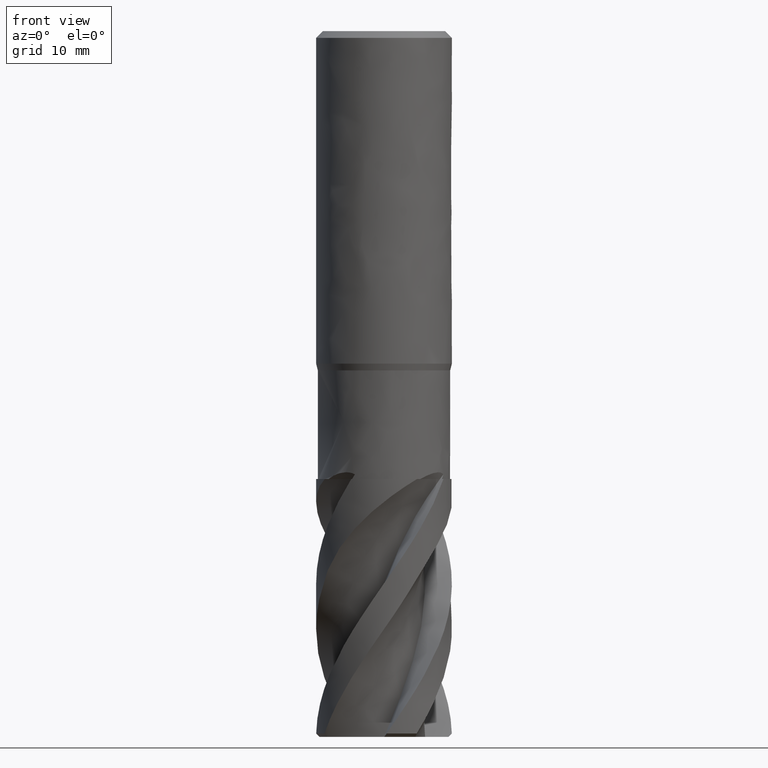
[diagram: clean part render]
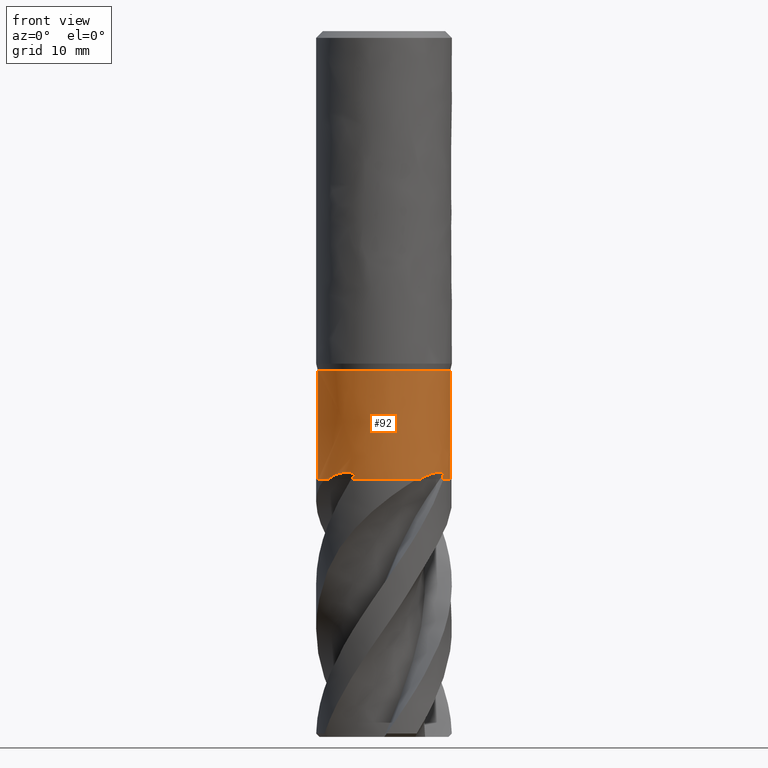
[diagram: same view with one face highlighted and labeled with its STEP entity id]
A machine part, front view. The second image highlights one B-rep face of the part: STEP entity #92.
In plain terms, the highlighted face is a freeform B-spline surface patch.
Its self-contained STEP definition (entity closure, byte-faithful):
#92 = ADVANCED_FACE('', (#93), #480, .T.);
#93 = FACE_OUTER_BOUND('', #94, .T.);
#94 = EDGE_LOOP('', (#95, #106, #115, #154, #163, #187, #196, #205, #244, #253, #277, #286, #295, #303, #310, #311, #320, #359, #368, #392, #401, #410, #449, #458));
#95 = ORIENTED_EDGE('', *, *, #96, .T.);
#96 = EDGE_CURVE('', #97, #99, #101, .T.);
#97 = VERTEX_POINT('', #98);
#98 = CARTESIAN_POINT('', (8.756850959223, -4.28719736867283, -65.3017050528582));
#99 = VERTEX_POINT('', #100);
#100 = CARTESIAN_POINT('', (8.53912736939505, -4.70593282668254, -66.));
#101 = B_SPLINE_CURVE_WITH_KNOTS('', 3, (#102, #103, #104, #105), .UNSPECIFIED., .F., .U., (4, 4), (0., 0.842827846339895), .UNSPECIFIED.);
#102 = CARTESIAN_POINT('', (8.756850959223, -4.28719736867283, -65.3017050528582));
#103 = CARTESIAN_POINT('', (8.68766062384898, -4.4285226687666, -65.5344465623021));
#104 = CARTESIAN_POINT('', (8.61505624183441, -4.56815646296184, -65.7672313743135));
#105 = CARTESIAN_POINT('', (8.53912736939505, -4.70593282668254, -66.));
#106 = ORIENTED_EDGE('', *, *, #107, .F.);
#107 = EDGE_CURVE('', #108, #99, #110, .T.);
#108 = VERTEX_POINT('', #109);
#109 = CARTESIAN_POINT('', (8.1661115730471, 5.32701809425746, -66.));
#110 = CIRCLE('', #111, 9.75);
#111 = AXIS2_PLACEMENT_3D('', #112, #113, #114);
#112 = CARTESIAN_POINT('', (2.47460364139206E-31, 4.04133443718627E-15, -66.));
#113 = DIRECTION('', (3.74939945665464E-33, 6.12323399573677E-17, -1.));
#114 = DIRECTION('', (-1., 6.12323399573677E-17, 0.));
#115 = ORIENTED_EDGE('', *, *, #116, .F.);
#116 = EDGE_CURVE('', #117, #108, #119, .T.);
#117 = VERTEX_POINT('', #118);
#118 = CARTESIAN_POINT('', (5.58780571917136, 7.98992661072653, -65.));
#119 = B_SPLINE_CURVE_WITH_KNOTS('', 3, (#120, #121, #122, #123, #124, #125, #126, #127, #128, #129, #130, #131, #132, #133, #134, #135, #136, #137, #138, #139, #140, #141, #142, #143, #144, #145, #146, #147, #148, #149, #150, #151, #152, #153), .UNSPECIFIED., .F., .U., (4, 3, 3, 3, 3, 3, 3, 3, 3, 3, 3, 4), (0., 0.295894813502349, 0.591605543678742, 0.887162923900365, 1.18259319370768, 1.47791821211226, 1.92055886264638, 2.36295472450022, 2.80516423822669, 3.2472305907231, 3.68918603656522, 3.88868995742141), .UNSPECIFIED.);
#120 = CARTESIAN_POINT('', (5.58780571917134, 7.98992661072655, -65.));
#121 = CARTESIAN_POINT('', (5.66863191934593, 7.9334002963311, -65.0003074940693));
#122 = CARTESIAN_POINT('', (5.74862943971346, 7.87562392953427, -65.0036174697221));
#123 = CARTESIAN_POINT('', (5.82756014106156, 7.81677956720737, -65.0095738791638));
#124 = CARTESIAN_POINT('', (5.90644173770974, 7.75797181338268, -65.015526582979));
#125 = CARTESIAN_POINT('', (5.98433476937979, 7.69804091377668, -65.0241277170154));
#126 = CARTESIAN_POINT('', (6.06106803810297, 7.63714306776403, -65.0350616414919));
#127 = CARTESIAN_POINT('', (6.13776151441389, 7.57627680221491, -65.0459898958434));
#128 = CARTESIAN_POINT('', (6.21335866759627, 7.51439585419938, -65.0592571987668));
#129 = CARTESIAN_POINT('', (6.28773667915756, 7.45163522011001, -65.0745879697391));
#130 = CARTESIAN_POINT('', (6.36208270295439, 7.38890157749754, -65.0899121474041));
#131 = CARTESIAN_POINT('', (6.43526151595352, 7.32524655654435, -65.1073084830774));
#132 = CARTESIAN_POINT('', (6.50718503328852, 7.26078803867399, -65.1265381143545));
#133 = CARTESIAN_POINT('', (6.57908292680679, 7.19635248510389, -65.1457608947911));
#134 = CARTESIAN_POINT('', (6.64976850337021, 7.13107665059492, -65.1668269728719));
#135 = CARTESIAN_POINT('', (6.71917861277031, 7.06506466847218, -65.1895297892887));
#136 = CARTESIAN_POINT('', (6.82321225050437, 6.96612423034842, -65.2235573480847));
#137 = CARTESIAN_POINT('', (6.92447318831579, 6.86544041781197, -65.2612889157965));
#138 = CARTESIAN_POINT('', (7.02282102425289, 6.76331907138142, -65.3021425154375));
#139 = CARTESIAN_POINT('', (7.12111447197025, 6.66125419999353, -65.3429735222624));
#140 = CARTESIAN_POINT('', (7.21659205619334, 6.5576570843931, -65.3869628833413));
#141 = CARTESIAN_POINT('', (7.30917031177156, 6.45279236869724, -65.4336390973057));
#142 = CARTESIAN_POINT('', (7.40170957108862, 6.34797182462476, -65.4802956500893));
#143 = CARTESIAN_POINT('', (7.4914267434313, 6.24180089685767, -65.5296751384779));
#144 = CARTESIAN_POINT('', (7.57827442019825, 6.13451357584029, -65.5813917381471));
#145 = CARTESIAN_POINT('', (7.66509398083507, 6.02726098809836, -65.6330915950467));
#146 = CARTESIAN_POINT('', (7.74910653942127, 5.91881841652804, -65.6871636722768));
#147 = CARTESIAN_POINT('', (7.83028813586472, 5.80939650130169, -65.7432887269051));
#148 = CARTESIAN_POINT('', (7.91144936527684, 5.70000203810477, -65.7993997007467));
#149 = CARTESIAN_POINT('', (7.98983094659575, 5.5895618859281, -65.8575975187286));
#150 = CARTESIAN_POINT('', (8.06542463959146, 5.4782684657727, -65.9176150439413));
#151 = CARTESIAN_POINT('', (8.09954852761349, 5.42802929823809, -65.9447076654095));
#152 = CARTESIAN_POINT('', (8.13311083595195, 5.3776069408398, -65.9721765606192));
#153 = CARTESIAN_POINT('', (8.1661115730471, 5.32701809425746, -66.));
#154 = ORIENTED_EDGE('', *, *, #155, .F.);
#155 = EDGE_CURVE('', #156, #117, #158, .T.);
#156 = VERTEX_POINT('', #157);
#157 = CARTESIAN_POINT('', (5.56306218584653, 8.00717422792863, -65.));
#158 = CIRCLE('', #159, 9.75);
#159 = AXIS2_PLACEMENT_3D('', #160, #161, #162);
#160 = CARTESIAN_POINT('', (2.43710964682552E-31, 3.9801020972289E-15, -65.));
#161 = DIRECTION('', (3.74939945665464E-33, 6.12323399573677E-17, -1.));
#162 = DIRECTION('', (-1., 6.12323399573677E-17, 0.));
#163 = ORIENTED_EDGE('', *, *, #164, .T.);
#164 = EDGE_CURVE('', #156, #165, #167, .T.);
#165 = VERTEX_POINT('', #166);
#166 = CARTESIAN_POINT('', (4.28719736867284, 8.756850959223, -65.3017050528582));
#167 = B_SPLINE_CURVE_WITH_KNOTS('', 3, (#168, #169, #170, #171, #172, #173, #174, #175, #176, #177, #178, #179, #180, #181, #182, #183, #184, #185, #186), .UNSPECIFIED., .F., .U., (4, 3, 3, 3, 3, 3, 4), (0., 0.295524196597729, 0.59090678252932, 0.88613401001352, 1.18119798637732, 1.47610099687891, 1.52332294986061), .UNSPECIFIED.);
#168 = CARTESIAN_POINT('', (5.56306218584757, 8.00717422792791, -65.));
#169 = CARTESIAN_POINT('', (5.48216296760915, 8.0633797467584, -65.0003084094346));
#170 = CARTESIAN_POINT('', (5.40035956915525, 8.11839113094171, -65.0036513465866));
#171 = CARTESIAN_POINT('', (5.31798982481093, 8.17199389520131, -65.0104194966552));
#172 = CARTESIAN_POINT('', (5.23565955078579, 8.22557097383774, -65.01718440353));
#173 = CARTESIAN_POINT('', (5.15264217490624, 8.27781832090463, -65.0273834288578));
#174 = CARTESIAN_POINT('', (5.0693954629468, 8.32848903704955, -65.0414192692173));
#175 = CARTESIAN_POINT('', (4.9861925351525, 8.37913310259228, -65.0554477273326));
#176 = CARTESIAN_POINT('', (4.9026108430375, 8.42829173732703, -65.0733380014459));
#177 = CARTESIAN_POINT('', (4.8192544647937, 8.47568796048829, -65.0954662287012));
#178 = CARTESIAN_POINT('', (4.73594417993449, 8.52305797506913, -65.1175822197615));
#179 = CARTESIAN_POINT('', (4.65267781824047, 8.56876905662357, -65.1439854493659));
#180 = CARTESIAN_POINT('', (4.57021933683169, 8.61252548404066, -65.1749630672334));
#181 = CARTESIAN_POINT('', (4.48780583888961, 8.65625804107155, -65.2059237859218));
#182 = CARTESIAN_POINT('', (4.40598738644574, 8.6981496225031, -65.2415415084255));
#183 = CARTESIAN_POINT('', (4.32567050542153, 8.73791020087334, -65.281931882519));
#184 = CARTESIAN_POINT('', (4.31280959914285, 8.74427694551637, -65.2883994745016));
#185 = CARTESIAN_POINT('', (4.29998389968607, 8.75059090268331, -65.2949905602877));
#186 = CARTESIAN_POINT('', (4.28719736867284, 8.756850959223, -65.3017050528582));
#187 = ORIENTED_EDGE('', *, *, #188, .T.);
#188 = EDGE_CURVE('', #165, #189, #191, .T.);
#189 = VERTEX_POINT('', #190);
#190 = CARTESIAN_POINT('', (4.70593282668255, 8.53912736939505, -66.));
#191 = B_SPLINE_CURVE_WITH_KNOTS('', 3, (#192, #193, #194, #195), .UNSPECIFIED., .F., .U., (4, 4), (0., 0.842827846339896), .UNSPECIFIED.);
#192 = CARTESIAN_POINT('', (4.28719736867284, 8.756850959223, -65.3017050528582));
#193 = CARTESIAN_POINT('', (4.42852266876661, 8.68766062384899, -65.5344465623021));
#194 = CARTESIAN_POINT('', (4.56815646296185, 8.61505624183441, -65.7672313743135));
#195 = CARTESIAN_POINT('', (4.70593282668255, 8.53912736939505, -66.));
#196 = ORIENTED_EDGE('', *, *, #197, .F.);
#197 = EDGE_CURVE('', #198, #189, #200, .T.);
#198 = VERTEX_POINT('', #199);
#199 = CARTESIAN_POINT('', (-5.32701809425744, 8.16611157304711, -66.));
#200 = CIRCLE('', #201, 9.75);
#201 = AXIS2_PLACEMENT_3D('', #202, #203, #204);
#202 = CARTESIAN_POINT('', (2.47460364139206E-31, 4.04133443718627E-15, -66.));
#203 = DIRECTION('', (3.74939945665464E-33, 6.12323399573677E-17, -1.));
#204 = DIRECTION('', (-1., 6.12323399573677E-17, 0.));
#205 = ORIENTED_EDGE('', *, *, #206, .F.);
#206 = EDGE_CURVE('', #207, #198, #209, .T.);
#207 = VERTEX_POINT('', #208);
#208 = CARTESIAN_POINT('', (-7.98992661072652, 5.58780571917137, -65.));
#209 = B_SPLINE_CURVE_WITH_KNOTS('', 3, (#210, #211, #212, #213, #214, #215, #216, #217, #218, #219, #220, #221, #222, #223, #224, #225, #226, #227, #228, #229, #230, #231, #232, #233, #234, #235, #236, #237, #238, #239, #240, #241, #242, #243), .UNSPECIFIED., .F., .U., (4, 3, 3, 3, 3, 3, 3, 3, 3, 3, 3, 4), (0., 0.295894813502346, 0.591605543678742, 0.887162923900364, 1.18259319370768, 1.47791821211226, 1.92055886264638, 2.36295472450022, 2.80516423822669, 3.2472305907231, 3.68918603656523, 3.88868995742159), .UNSPECIFIED.);
#210 = CARTESIAN_POINT('', (-7.98992661072664, 5.5878057191712, -65.));
#211 = CARTESIAN_POINT('', (-7.93340029633119, 5.6686319193458, -65.0003074940693));
#212 = CARTESIAN_POINT('', (-7.87562392953436, 5.74862943971333, -65.0036174697221));
#213 = CARTESIAN_POINT('', (-7.81677956720747, 5.82756014106143, -65.0095738791638));
#214 = CARTESIAN_POINT('', (-7.75797181338277, 5.90644173770961, -65.015526582979));
#215 = CARTESIAN_POINT('', (-7.69804091377678, 5.98433476937966, -65.0241277170154));
#216 = CARTESIAN_POINT('', (-7.63714306776413, 6.06106803810285, -65.0350616414919));
#217 = CARTESIAN_POINT('', (-7.57627680221501, 6.13776151441377, -65.0459898958433));
#218 = CARTESIAN_POINT('', (-7.51439585419948, 6.21335866759615, -65.0592571987667));
#219 = CARTESIAN_POINT('', (-7.45163522011011, 6.28773667915744, -65.0745879697391));
#220 = CARTESIAN_POINT('', (-7.38890157749765, 6.36208270295427, -65.0899121474041));
#221 = CARTESIAN_POINT('', (-7.32524655654445, 6.43526151595341, -65.1073084830774));
#222 = CARTESIAN_POINT('', (-7.26078803867409, 6.50718503328841, -65.1265381143545));
#223 = CARTESIAN_POINT('', (-7.196352485104, 6.57908292680668, -65.1457608947911));
#224 = CARTESIAN_POINT('', (-7.13107665059503, 6.6497685033701, -65.1668269728718));
#225 = CARTESIAN_POINT('', (-7.06506466847229, 6.7191786127702, -65.1895297892887));
#226 = CARTESIAN_POINT('', (-6.96612423034853, 6.82321225050426, -65.2235573480847));
#227 = CARTESIAN_POINT('', (-6.86544041781207, 6.92447318831568, -65.2612889157965));
#228 = CARTESIAN_POINT('', (-6.76331907138153, 7.02282102425278, -65.3021425154374));
#229 = CARTESIAN_POINT('', (-6.66125419999365, 7.12111447197015, -65.3429735222624));
#230 = CARTESIAN_POINT('', (-6.55765708439321, 7.21659205619325, -65.3869628833412));
#231 = CARTESIAN_POINT('', (-6.45279236869735, 7.30917031177146, -65.4336390973057));
#232 = CARTESIAN_POINT('', (-6.34797182462487, 7.40170957108852, -65.4802956500892));
#233 = CARTESIAN_POINT('', (-6.24180089685779, 7.49142674343121, -65.5296751384779));
#234 = CARTESIAN_POINT('', (-6.13451357584041, 7.57827442019816, -65.581391738147));
#235 = CARTESIAN_POINT('', (-6.02726098809848, 7.66509398083498, -65.6330915950466));
#236 = CARTESIAN_POINT('', (-5.91881841652816, 7.74910653942118, -65.6871636722768));
#237 = CARTESIAN_POINT('', (-5.80939650130181, 7.83028813586463, -65.7432887269051));
#238 = CARTESIAN_POINT('', (-5.70000203810489, 7.91144936527676, -65.7993997007467));
#239 = CARTESIAN_POINT('', (-5.58956188592822, 7.98983094659567, -65.8575975187285));
#240 = CARTESIAN_POINT('', (-5.47826846577282, 8.06542463959139, -65.9176150439412));
#241 = CARTESIAN_POINT('', (-5.42802929823816, 8.09954852761345, -65.9447076654095));
#242 = CARTESIAN_POINT('', (-5.37760694083982, 8.13311083595193, -65.9721765606192));
#243 = CARTESIAN_POINT('', (-5.32701809425744, 8.16611157304711, -66.));
#244 = ORIENTED_EDGE('', *, *, #245, .F.);
#245 = EDGE_CURVE('', #246, #207, #248, .T.);
#246 = VERTEX_POINT('', #247);
#247 = CARTESIAN_POINT('', (-8.00717422792863, 5.56306218584654, -65.));
#248 = CIRCLE('', #249, 9.75);
#249 = AXIS2_PLACEMENT_3D('', #250, #251, #252);
#250 = CARTESIAN_POINT('', (2.43710964682552E-31, 3.9801020972289E-15, -65.));
#251 = DIRECTION('', (3.74939945665464E-33, 6.12323399573677E-17, -1.));
#252 = DIRECTION('', (-1., 6.12323399573677E-17, 0.));
#253 = ORIENTED_EDGE('', *, *, #254, .T.);
#254 = EDGE_CURVE('', #246, #255, #257, .T.);
#255 = VERTEX_POINT('', #256);
#256 = CARTESIAN_POINT('', (-8.756850959223, 4.28719736867284, -65.3017050528582));
#257 = B_SPLINE_CURVE_WITH_KNOTS('', 3, (#258, #259, #260, #261, #262, #263, #264, #265, #266, #267, #268, #269, #270, #271, #272, #273, #274, #275, #276), .UNSPECIFIED., .F., .U., (4, 3, 3, 3, 3, 3, 4), (0., 0.295524196597728, 0.590906782529322, 0.886134010013519, 1.18119798637732, 1.47610099687891, 1.52332294986075), .UNSPECIFIED.);
#258 = CARTESIAN_POINT('', (-8.00717422792782, 5.56306218584769, -65.));
#259 = CARTESIAN_POINT('', (-8.06337974675831, 5.48216296760927, -65.0003084094346));
#260 = CARTESIAN_POINT('', (-8.11839113094162, 5.40035956915538, -65.0036513465866));
#261 = CARTESIAN_POINT('', (-8.17199389520123, 5.31798982481106, -65.0104194966552));
#262 = CARTESIAN_POINT('', (-8.22557097383765, 5.23565955078592, -65.01718440353));
#263 = CARTESIAN_POINT('', (-8.27781832090455, 5.15264217490636, -65.0273834288578));
#264 = CARTESIAN_POINT('', (-8.32848903704947, 5.06939546294693, -65.0414192692173));
#265 = CARTESIAN_POINT('', (-8.3791331025922, 4.98619253515263, -65.0554477273326));
#266 = CARTESIAN_POINT('', (-8.42829173732695, 4.90261084303763, -65.0733380014459));
#267 = CARTESIAN_POINT('', (-8.47568796048821, 4.81925446479382, -65.0954662287011));
#268 = CARTESIAN_POINT('', (-8.52305797506905, 4.73594417993462, -65.1175822197614));
#269 = CARTESIAN_POINT('', (-8.56876905662351, 4.6526778182406, -65.1439854493659));
#270 = CARTESIAN_POINT('', (-8.61252548404059, 4.57021933683181, -65.1749630672333));
#271 = CARTESIAN_POINT('', (-8.65625804107149, 4.48780583888973, -65.2059237859217));
#272 = CARTESIAN_POINT('', (-8.69814962250304, 4.40598738644587, -65.2415415084254));
#273 = CARTESIAN_POINT('', (-8.73791020087327, 4.32567050542165, -65.281931882519));
#274 = CARTESIAN_POINT('', (-8.74427694551632, 4.31280959914293, -65.2883994745016));
#275 = CARTESIAN_POINT('', (-8.75059090268329, 4.29998389968612, -65.2949905602877));
#276 = CARTESIAN_POINT('', (-8.756850959223, 4.28719736867284, -65.3017050528582));
#277 = ORIENTED_EDGE('', *, *, #278, .T.);
#278 = EDGE_CURVE('', #255, #279, #281, .T.);
#279 = VERTEX_POINT('', #280);
#280 = CARTESIAN_POINT('', (-8.53912736939505, 4.70593282668256, -66.));
#281 = B_SPLINE_CURVE_WITH_KNOTS('', 3, (#282, #283, #284, #285), .UNSPECIFIED., .F., .U., (4, 4), (0., 0.842827846339895), .UNSPECIFIED.);
#282 = CARTESIAN_POINT('', (-8.756850959223, 4.28719736867284, -65.3017050528582));
#283 = CARTESIAN_POINT('', (-8.68766062384898, 4.42852266876661, -65.5344465623021));
#284 = CARTESIAN_POINT('', (-8.6150562418344, 4.56815646296185, -65.7672313743135));
#285 = CARTESIAN_POINT('', (-8.53912736939505, 4.70593282668255, -66.));
#286 = ORIENTED_EDGE('', *, *, #287, .F.);
#287 = EDGE_CURVE('', #288, #279, #290, .T.);
#288 = VERTEX_POINT('', #289);
#289 = CARTESIAN_POINT('', (-9.75, 4.6383497517706E-15, -66.));
#290 = CIRCLE('', #291, 9.75);
#291 = AXIS2_PLACEMENT_3D('', #292, #293, #294);
#292 = CARTESIAN_POINT('', (2.47460364139206E-31, 4.04133443718627E-15, -66.));
#293 = DIRECTION('', (3.74939945665464E-33, 6.12323399573677E-17, -1.));
#294 = DIRECTION('', (-1., 6.12323399573677E-17, 0.));
#295 = ORIENTED_EDGE('', *, *, #296, .F.);
#296 = EDGE_CURVE('', #297, #288, #299, .T.);
#297 = VERTEX_POINT('', #298);
#298 = CARTESIAN_POINT('', (-9.75, 3.65863231245272E-15, -50.));
#299 = LINE('', #300, #301);
#300 = CARTESIAN_POINT('', (-9.75, 3.65863231245272E-15, -50.));
#301 = VECTOR('', #302, 16.);
#302 = DIRECTION('', (0., 9.79717439317882E-16, -16.));
#303 = ORIENTED_EDGE('', *, *, #304, .T.);
#304 = EDGE_CURVE('', #297, #297, #305, .T.);
#305 = CIRCLE('', #306, 9.75);
#306 = AXIS2_PLACEMENT_3D('', #307, #308, #309);
#307 = CARTESIAN_POINT('', (1.87469972832732E-31, 3.06161699786838E-15, -50.));
#308 = DIRECTION('', (3.74939945665464E-33, 6.12323399573677E-17, -1.));
#309 = DIRECTION('', (-1., 6.12323399573677E-17, 0.));
#310 = ORIENTED_EDGE('', *, *, #296, .T.);
#311 = ORIENTED_EDGE('', *, *, #312, .F.);
#312 = EDGE_CURVE('', #313, #288, #315, .T.);
#313 = VERTEX_POINT('', #314);
#314 = CARTESIAN_POINT('', (-8.16611157304709, -5.32701809425746, -66.));
#315 = CIRCLE('', #316, 9.75);
#316 = AXIS2_PLACEMENT_3D('', #317, #318, #319);
#317 = CARTESIAN_POINT('', (2.47460364139206E-31, 4.04133443718627E-15, -66.));
#318 = DIRECTION('', (3.74939945665464E-33, 6.12323399573677E-17, -1.));
#319 = DIRECTION('', (-1., 6.12323399573677E-17, 0.));
#320 = ORIENTED_EDGE('', *, *, #321, .F.);
#321 = EDGE_CURVE('', #322, #313, #324, .T.);
#322 = VERTEX_POINT('', #323);
#323 = CARTESIAN_POINT('', (-5.58780571917135, -7.98992661072652, -65.));
#324 = B_SPLINE_CURVE_WITH_KNOTS('', 3, (#325, #326, #327, #328, #329, #330, #331, #332, #333, #334, #335, #336, #337, #338, #339, #340, #341, #342, #343, #344, #345, #346, #347, #348, #349, #350, #351, #352, #353, #354, #355, #356, #357, #358), .UNSPECIFIED., .F., .U., (4, 3, 3, 3, 3, 3, 3, 3, 3, 3, 3, 4), (0., 0.295894813502348, 0.591605543678741, 0.887162923900365, 1.18259319370768, 1.47791821211226, 1.92055886264638, 2.36295472450021, 2.80516423822669, 3.2472305907231, 3.68918603656522, 3.88868995742194), .UNSPECIFIED.);
#325 = CARTESIAN_POINT('', (-5.5878057191709, -7.98992661072684, -65.));
#326 = CARTESIAN_POINT('', (-5.6686319193455, -7.9334002963314, -65.0003074940693));
#327 = CARTESIAN_POINT('', (-5.74862943971303, -7.87562392953457, -65.0036174697221));
#328 = CARTESIAN_POINT('', (-5.82756014106114, -7.81677956720768, -65.0095738791638));
#329 = CARTESIAN_POINT('', (-5.90644173770932, -7.75797181338299, -65.015526582979));
#330 = CARTESIAN_POINT('', (-5.98433476937937, -7.69804091377699, -65.0241277170153));
#331 = CARTESIAN_POINT('', (-6.06106803810256, -7.63714306776435, -65.0350616414919));
#332 = CARTESIAN_POINT('', (-6.13776151441348, -7.57627680221523, -65.0459898958433));
#333 = CARTESIAN_POINT('', (-6.21335866759587, -7.5143958541997, -65.0592571987667));
#334 = CARTESIAN_POINT('', (-6.28773667915717, -7.45163522011034, -65.074587969739));
#335 = CARTESIAN_POINT('', (-6.362082702954, -7.38890157749787, -65.089912147404));
#336 = CARTESIAN_POINT('', (-6.43526151595314, -7.32524655654468, -65.1073084830773));
#337 = CARTESIAN_POINT('', (-6.50718503328814, -7.26078803867432, -65.1265381143544));
#338 = CARTESIAN_POINT('', (-6.57908292680642, -7.19635248510423, -65.145760894791));
#339 = CARTESIAN_POINT('', (-6.64976850336984, -7.13107665059527, -65.1668269728717));
#340 = CARTESIAN_POINT('', (-6.71917861276994, -7.06506466847253, -65.1895297892886));
#341 = CARTESIAN_POINT('', (-6.823212250504, -6.96612423034877, -65.2235573480846));
#342 = CARTESIAN_POINT('', (-6.92447318831543, -6.86544041781232, -65.2612889157964));
#343 = CARTESIAN_POINT('', (-7.02282102425253, -6.76331907138178, -65.3021425154373));
#344 = CARTESIAN_POINT('', (-7.1211144719699, -6.6612541999939, -65.3429735222623));
#345 = CARTESIAN_POINT('', (-7.21659205619301, -6.55765708439347, -65.3869628833411));
#346 = CARTESIAN_POINT('', (-7.30917031177123, -6.45279236869761, -65.4336390973056));
#347 = CARTESIAN_POINT('', (-7.40170957108829, -6.34797182462513, -65.4802956500891));
#348 = CARTESIAN_POINT('', (-7.49142674343098, -6.24180089685805, -65.5296751384778));
#349 = CARTESIAN_POINT('', (-7.57827442019794, -6.13451357584067, -65.5813917381469));
#350 = CARTESIAN_POINT('', (-7.66509398083477, -6.02726098809875, -65.6330915950465));
#351 = CARTESIAN_POINT('', (-7.74910653942097, -5.91881841652843, -65.6871636722766));
#352 = CARTESIAN_POINT('', (-7.83028813586442, -5.80939650130207, -65.743288726905));
#353 = CARTESIAN_POINT('', (-7.91144936527655, -5.70000203810516, -65.7993997007465));
#354 = CARTESIAN_POINT('', (-7.98983094659547, -5.58956188592849, -65.8575975187283));
#355 = CARTESIAN_POINT('', (-8.06542463959119, -5.47826846577309, -65.9176150439411));
#356 = CARTESIAN_POINT('', (-8.09954852761332, -5.42802929823834, -65.9447076654094));
#357 = CARTESIAN_POINT('', (-8.13311083595187, -5.37760694083992, -65.9721765606191));
#358 = CARTESIAN_POINT('', (-8.1661115730471, -5.32701809425745, -66.));
#359 = ORIENTED_EDGE('', *, *, #360, .F.);
#360 = EDGE_CURVE('', #361, #322, #363, .T.);
#361 = VERTEX_POINT('', #362);
#362 = CARTESIAN_POINT('', (-5.56306218584653, -8.00717422792862, -65.));
#363 = CIRCLE('', #364, 9.75);
#364 = AXIS2_PLACEMENT_3D('', #365, #366, #367);
#365 = CARTESIAN_POINT('', (2.43710964682552E-31, 3.9801020972289E-15, -65.));
#366 = DIRECTION('', (3.74939945665464E-33, 6.12323399573677E-17, -1.));
#367 = DIRECTION('', (-1., 6.12323399573677E-17, 0.));
#368 = ORIENTED_EDGE('', *, *, #369, .T.);
#369 = EDGE_CURVE('', #361, #370, #372, .T.);
#370 = VERTEX_POINT('', #371);
#371 = CARTESIAN_POINT('', (-4.28719736867284, -8.75685095922299, -65.3017050528582));
#372 = B_SPLINE_CURVE_WITH_KNOTS('', 3, (#373, #374, #375, #376, #377, #378, #379, #380, #381, #382, #383, #384, #385, #386, #387, #388, #389, #390, #391), .UNSPECIFIED., .F., .U., (4, 3, 3, 3, 3, 3, 4), (0., 0.295524196597729, 0.590906782529322, 0.886134010013515, 1.18119798637732, 1.47610099687891, 1.52332294986015), .UNSPECIFIED.);
#373 = CARTESIAN_POINT('', (-5.56306218584719, -8.00717422792816, -65.));
#374 = CARTESIAN_POINT('', (-5.48216296760877, -8.06337974675865, -65.0003084094346));
#375 = CARTESIAN_POINT('', (-5.40035956915487, -8.11839113094195, -65.0036513465866));
#376 = CARTESIAN_POINT('', (-5.31798982481055, -8.17199389520155, -65.0104194966552));
#377 = CARTESIAN_POINT('', (-5.2356595507854, -8.22557097383797, -65.01718440353));
#378 = CARTESIAN_POINT('', (-5.15264217490585, -8.27781832090486, -65.0273834288579));
#379 = CARTESIAN_POINT('', (-5.06939546294641, -8.32848903704977, -65.0414192692174));
#380 = CARTESIAN_POINT('', (-4.98619253515211, -8.3791331025925, -65.0554477273327));
#381 = CARTESIAN_POINT('', (-4.90261084303711, -8.42829173732724, -65.073338001446));
#382 = CARTESIAN_POINT('', (-4.81925446479331, -8.47568796048849, -65.0954662287013));
#383 = CARTESIAN_POINT('', (-4.7359441799341, -8.52305797506933, -65.1175822197616));
#384 = CARTESIAN_POINT('', (-4.65267781824009, -8.56876905662378, -65.1439854493661));
#385 = CARTESIAN_POINT('', (-4.5702193368313, -8.61252548404085, -65.1749630672335));
#386 = CARTESIAN_POINT('', (-4.48780583888923, -8.65625804107174, -65.2059237859219));
#387 = CARTESIAN_POINT('', (-4.40598738644537, -8.69814962250328, -65.2415415084256));
#388 = CARTESIAN_POINT('', (-4.32567050542116, -8.73791020087351, -65.2819318825192));
#389 = CARTESIAN_POINT('', (-4.3128095991426, -8.74427694551648, -65.2883994745017));
#390 = CARTESIAN_POINT('', (-4.29998389968595, -8.75059090268336, -65.2949905602878));
#391 = CARTESIAN_POINT('', (-4.28719736867284, -8.75685095922299, -65.3017050528582));
#392 = ORIENTED_EDGE('', *, *, #393, .T.);
#393 = EDGE_CURVE('', #370, #394, #396, .T.);
#394 = VERTEX_POINT('', #395);
#395 = CARTESIAN_POINT('', (-4.70593282668255, -8.53912736939504, -66.));
#396 = B_SPLINE_CURVE_WITH_KNOTS('', 3, (#397, #398, #399, #400), .UNSPECIFIED., .F., .U., (4, 4), (0., 0.8428278463399), .UNSPECIFIED.);
#397 = CARTESIAN_POINT('', (-4.28719736867284, -8.75685095922299, -65.3017050528582));
#398 = CARTESIAN_POINT('', (-4.42852266876661, -8.68766062384898, -65.5344465623021));
#399 = CARTESIAN_POINT('', (-4.56815646296185, -8.6150562418344, -65.7672313743135));
#400 = CARTESIAN_POINT('', (-4.70593282668255, -8.53912736939504, -66.));
#401 = ORIENTED_EDGE('', *, *, #402, .F.);
#402 = EDGE_CURVE('', #403, #394, #405, .T.);
#403 = VERTEX_POINT('', #404);
#404 = CARTESIAN_POINT('', (5.32701809425746, -8.16611157304709, -66.));
#405 = CIRCLE('', #406, 9.75);
#406 = AXIS2_PLACEMENT_3D('', #407, #408, #409);
#407 = CARTESIAN_POINT('', (2.47460364139206E-31, 4.04133443718627E-15, -66.));
#408 = DIRECTION('', (3.74939945665464E-33, 6.12323399573677E-17, -1.));
#409 = DIRECTION('', (-1., 6.12323399573677E-17, 0.));
#410 = ORIENTED_EDGE('', *, *, #411, .F.);
#411 = EDGE_CURVE('', #412, #403, #414, .T.);
#412 = VERTEX_POINT('', #413);
#413 = CARTESIAN_POINT('', (7.98992661072652, -5.58780571917135, -65.));
#414 = B_SPLINE_CURVE_WITH_KNOTS('', 3, (#415, #416, #417, #418, #419, #420, #421, #422, #423, #424, #425, #426, #427, #428, #429, #430, #431, #432, #433, #434, #435, #436, #437, #438, #439, #440, #441, #442, #443, #444, #445, #446, #447, #448), .UNSPECIFIED., .F., .U., (4, 3, 3, 3, 3, 3, 3, 3, 3, 3, 3, 4), (0., 0.295894813502347, 0.591605543678746, 0.887162923900365, 1.18259319370768, 1.47791821211226, 1.92055886264638, 2.36295472450021, 2.80516423822669, 3.2472305907231, 3.68918603656522, 3.88868995742075), .UNSPECIFIED.);
#415 = CARTESIAN_POINT('', (7.98992661072616, -5.58780571917188, -65.));
#416 = CARTESIAN_POINT('', (7.9334002963307, -5.66863191934647, -65.0003074940693));
#417 = CARTESIAN_POINT('', (7.87562392953387, -5.748629439714, -65.0036174697221));
#418 = CARTESIAN_POINT('', (7.81677956720697, -5.82756014106209, -65.0095738791638));
#419 = CARTESIAN_POINT('', (7.75797181338227, -5.90644173771027, -65.0155265829791));
#420 = CARTESIAN_POINT('', (7.69804091377626, -5.98433476938031, -65.0241277170154));
#421 = CARTESIAN_POINT('', (7.6371430677636, -6.0610680381035, -65.035061641492));
#422 = CARTESIAN_POINT('', (7.57627680221449, -6.13776151441441, -65.0459898958434));
#423 = CARTESIAN_POINT('', (7.51439585419894, -6.21335866759678, -65.0592571987669));
#424 = CARTESIAN_POINT('', (7.45163522010957, -6.28773667915807, -65.0745879697392));
#425 = CARTESIAN_POINT('', (7.38890157749711, -6.36208270295489, -65.0899121474042));
#426 = CARTESIAN_POINT('', (7.32524655654391, -6.43526151595402, -65.1073084830775));
#427 = CARTESIAN_POINT('', (7.26078803867354, -6.50718503328901, -65.1265381143546));
#428 = CARTESIAN_POINT('', (7.19635248510345, -6.57908292680728, -65.1457608947913));
#429 = CARTESIAN_POINT('', (7.13107665059448, -6.64976850337069, -65.166826972872));
#430 = CARTESIAN_POINT('', (7.06506466847173, -6.71917861277078, -65.1895297892888));
#431 = CARTESIAN_POINT('', (6.96612423034796, -6.82321225050483, -65.2235573480849));
#432 = CARTESIAN_POINT('', (6.8654404178115, -6.92447318831624, -65.2612889157967));
#433 = CARTESIAN_POINT('', (6.76331907138095, -7.02282102425333, -65.3021425154377));
#434 = CARTESIAN_POINT('', (6.66125419999306, -7.12111447197068, -65.3429735222626));
#435 = CARTESIAN_POINT('', (6.55765708439263, -7.21659205619377, -65.3869628833415));
#436 = CARTESIAN_POINT('', (6.45279236869676, -7.30917031177198, -65.4336390973059));
#437 = CARTESIAN_POINT('', (6.34797182462427, -7.40170957108903, -65.4802956500895));
#438 = CARTESIAN_POINT('', (6.24180089685718, -7.4914267434317, -65.5296751384782));
#439 = CARTESIAN_POINT('', (6.1345135758398, -7.57827442019865, -65.5813917381473));
#440 = CARTESIAN_POINT('', (6.02726098809787, -7.66509398083546, -65.6330915950469));
#441 = CARTESIAN_POINT('', (5.91881841652754, -7.74910653942164, -65.6871636722771));
#442 = CARTESIAN_POINT('', (5.80939650130118, -7.83028813586509, -65.7432887269054));
#443 = CARTESIAN_POINT('', (5.70000203810426, -7.9114493652772, -65.799399700747));
#444 = CARTESIAN_POINT('', (5.58956188592759, -7.9898309465961, -65.8575975187288));
#445 = CARTESIAN_POINT('', (5.47826846577219, -8.06542463959181, -65.9176150439416));
#446 = CARTESIAN_POINT('', (5.42802929823774, -8.09954852761372, -65.9447076654097));
#447 = CARTESIAN_POINT('', (5.37760694083962, -8.13311083595206, -65.9721765606193));
#448 = CARTESIAN_POINT('', (5.32701809425745, -8.16611157304709, -66.));
#449 = ORIENTED_EDGE('', *, *, #450, .F.);
#450 = EDGE_CURVE('', #451, #412, #453, .T.);
#451 = VERTEX_POINT('', #452);
#452 = CARTESIAN_POINT('', (8.00717422792863, -5.56306218584653, -65.));
#453 = CIRCLE('', #454, 9.75);
#454 = AXIS2_PLACEMENT_3D('', #455, #456, #457);
#455 = CARTESIAN_POINT('', (2.43710964682552E-31, 3.9801020972289E-15, -65.));
#456 = DIRECTION('', (3.74939945665464E-33, 6.12323399573677E-17, -1.));
#457 = DIRECTION('', (-1., 6.12323399573677E-17, 0.));
#458 = ORIENTED_EDGE('', *, *, #459, .T.);
#459 = EDGE_CURVE('', #451, #97, #460, .T.);
#460 = B_SPLINE_CURVE_WITH_KNOTS('', 3, (#461, #462, #463, #464, #465, #466, #467, #468, #469, #470, #471, #472, #473, #474, #475, #476, #477, #478, #479), .UNSPECIFIED., .F., .U., (4, 3, 3, 3, 3, 3, 4), (0., 0.295524196597731, 0.590906782529321, 0.88613401001352, 1.18119798637732, 1.4761009968789, 1.52332294985892), .UNSPECIFIED.);
#461 = CARTESIAN_POINT('', (8.00717422792887, -5.56306218584618, -65.));
#462 = CARTESIAN_POINT('', (8.06337974675934, -5.48216296760775, -65.0003084094347));
#463 = CARTESIAN_POINT('', (8.11839113094264, -5.40035956915385, -65.0036513465867));
#464 = CARTESIAN_POINT('', (8.17199389520223, -5.31798982480951, -65.0104194966553));
#465 = CARTESIAN_POINT('', (8.22557097383864, -5.23565955078437, -65.0171844035301));
#466 = CARTESIAN_POINT('', (8.27781832090551, -5.15264217490481, -65.027383428858));
#467 = CARTESIAN_POINT('', (8.32848903705041, -5.06939546294537, -65.0414192692175));
#468 = CARTESIAN_POINT('', (8.37913310259313, -4.98619253515107, -65.0554477273329));
#469 = CARTESIAN_POINT('', (8.42829173732786, -4.90261084303607, -65.0733380014463));
#470 = CARTESIAN_POINT('', (8.4756879604891, -4.81925446479226, -65.0954662287015));
#471 = CARTESIAN_POINT('', (8.52305797506991, -4.73594417993306, -65.1175822197619));
#472 = CARTESIAN_POINT('', (8.56876905662434, -4.65267781823905, -65.1439854493664));
#473 = CARTESIAN_POINT('', (8.6125254840414, -4.57021933683027, -65.1749630672339));
#474 = CARTESIAN_POINT('', (8.65625804107227, -4.4878058388882, -65.2059237859224));
#475 = CARTESIAN_POINT('', (8.6981496225038, -4.40598738644435, -65.2415415084261));
#476 = CARTESIAN_POINT('', (8.73791020087401, -4.32567050542015, -65.2819318825197));
#477 = CARTESIAN_POINT('', (8.74427694551681, -4.31280959914193, -65.2883994745021));
#478 = CARTESIAN_POINT('', (8.75059090268353, -4.29998389968561, -65.2949905602879));
#479 = CARTESIAN_POINT('', (8.756850959223, -4.28719736867283, -65.3017050528582));
#480 = (
   BOUNDED_SURFACE ()
   B_SPLINE_SURFACE (2, 1, ((#481, #482), (#483, #484), (#485, #486), (#487, #488), (#489, #490), (#491, #492), (#493, #494), (#495, #496), (#497, #498)), .UNSPECIFIED., .T., .F., .U.)
   B_SPLINE_SURFACE_WITH_KNOTS ((3, 2, 2, 2, 3), (2, 2), (0., 15.3152641862502, 30.6305283725005, 45.9457925587507, 61.261056745001), (0., 1.), .UNSPECIFIED.)
   GEOMETRIC_REPRESENTATION_ITEM ()
   RATIONAL_B_SPLINE_SURFACE (((1., 1.), (0.707106781186548, 0.707106781186548), (1., 1.), (0.707106781186548, 0.707106781186548), (1., 1.), (0.707106781186548, 0.707106781186548), (1., 1.), (0.707106781186548, 0.707106781186548), (1., 1.)))
   REPRESENTATION_ITEM ('')
   SURFACE ()
);
#481 = CARTESIAN_POINT('', (-9.75, 3.65863231245272E-15, -50.));
#482 = CARTESIAN_POINT('', (-9.75, 4.6383497517706E-15, -66.));
#483 = CARTESIAN_POINT('', (-9.75, 9.75, -50.));
#484 = CARTESIAN_POINT('', (-9.75, 9.75000000000001, -66.));
#485 = CARTESIAN_POINT('', (1.97215226305253E-31, 9.75, -50.));
#486 = CARTESIAN_POINT('', (2.95822839457879E-31, 9.75000000000001, -66.));
#487 = CARTESIAN_POINT('', (9.75, 9.75, -50.));
#488 = CARTESIAN_POINT('', (9.75, 9.75, -66.));
#489 = CARTESIAN_POINT('', (9.75, 3.65863231245272E-15, -50.));
#490 = CARTESIAN_POINT('', (9.75, 4.6383497517706E-15, -66.));
#491 = CARTESIAN_POINT('', (9.75, -9.74999999999999, -50.));
#492 = CARTESIAN_POINT('', (9.75, -9.74999999999999, -66.));
#493 = CARTESIAN_POINT('', (1.19403062916867E-15, -9.75, -50.));
#494 = CARTESIAN_POINT('', (1.19403062916867E-15, -9.74999999999999, -66.));
#495 = CARTESIAN_POINT('', (-9.75, -9.75, -50.));
#496 = CARTESIAN_POINT('', (-9.75, -9.75, -66.));
#497 = CARTESIAN_POINT('', (-9.75, 3.65863231245272E-15, -50.));
#498 = CARTESIAN_POINT('', (-9.75, 4.6383497517706E-15, -66.));